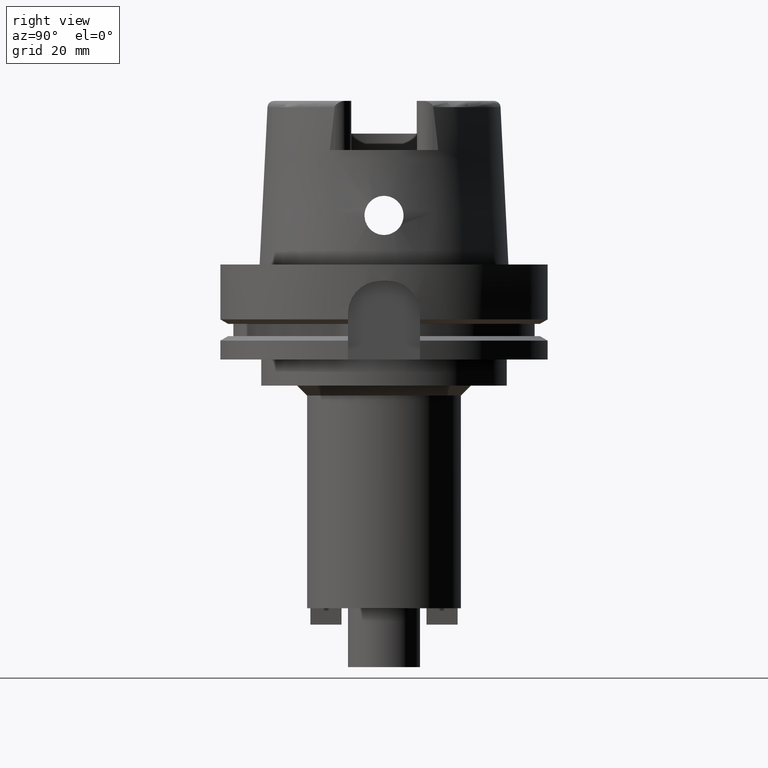
[diagram: clean part render]
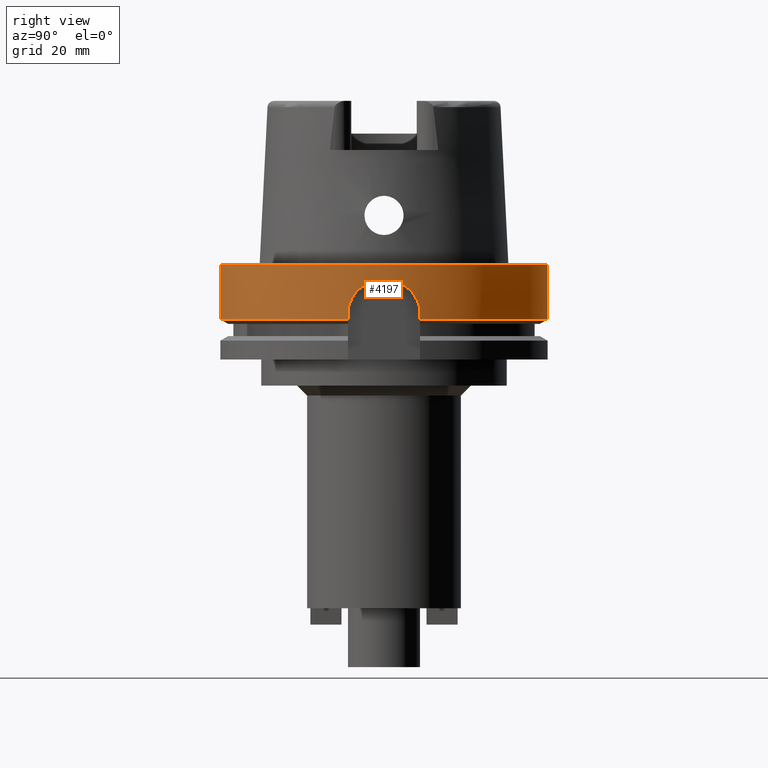
[diagram: same view with one face highlighted and labeled with its STEP entity id]
A machine part, right view. The second image highlights one B-rep face of the part: STEP entity #4197.
In plain terms, the highlighted cylindrical surface (partial cylindrical patch) has radius 50 mm, axis along (0, 0, 1).
Its self-contained STEP definition (entity closure, byte-faithful):
#1601=DIRECTION('',(0.E0,2.969006079282E-14,-1.E0));
#1602=VECTOR('',#1601,1.675240473581E1);
#1603=CARTESIAN_POINT('',(0.E0,-5.E1,-2.084258691563E-13));
#1604=LINE('',#1603,#1602);
#1654=CARTESIAN_POINT('',(4.877499359303E1,1.1E1,-1.675240473581E1));
#1659=CARTESIAN_POINT('',(0.E0,0.E0,-1.675240473581E1));
#1660=DIRECTION('',(0.E0,0.E0,1.E0));
#1661=DIRECTION('',(9.754998718606E-1,2.2E-1,0.E0));
#1662=AXIS2_PLACEMENT_3D('',#1659,#1660,#1661);
#1803=CARTESIAN_POINT('',(4.998999899980E1,-1.E0,-5.E0));
#1804=CARTESIAN_POINT('',(4.997504301820E1,-1.747649504988E0,-5.E0));
#1805=CARTESIAN_POINT('',(4.991291509295E1,-3.209087256410E0,
-5.162327818366E0));
#1806=CARTESIAN_POINT('',(4.972649899334E1,-5.357682436893E0,
-5.904331775824E0));
#1807=CARTESIAN_POINT('',(4.947875385072E1,-7.274178437564E0,
-7.105066867585E0));
#1808=CARTESIAN_POINT('',(4.921266909850E1,-8.876813600699E0,
-8.703268635923E0));
#1809=CARTESIAN_POINT('',(4.897589085151E1,-1.008412619630E1,
-1.061693787721E1));
#1810=CARTESIAN_POINT('',(4.881255513283E1,-1.083556002178E1,
-1.277678054108E1));
#1811=CARTESIAN_POINT('',(4.877499359303E1,-1.1E1,-1.424649556494E1));
#1812=CARTESIAN_POINT('',(4.877499359303E1,-1.1E1,-1.5E1));
#1817=DIRECTION('',(-5.027793947017E-13,6.690209687563E-14,-1.E0));
#1818=VECTOR('',#1817,1.752404735809E0);
#1819=CARTESIAN_POINT('',(4.877499359303E1,-1.1E1,-1.5E1));
#1820=LINE('',#1819,#1818);
#1824=DIRECTION('',(0.E0,-2.969006079282E-14,-1.E0));
#1825=VECTOR('',#1824,1.675240473581E1);
#1826=CARTESIAN_POINT('',(0.E0,5.E1,-2.084258691563E-13));
#1827=LINE('',#1826,#1825);
#1831=DIRECTION('',(4.946700496259E-13,7.095676941355E-14,1.E0));
#1832=VECTOR('',#1831,1.752404735809E0);
#1833=CARTESIAN_POINT('',(4.877499359303E1,1.1E1,-1.675240473581E1));
#1834=LINE('',#1833,#1832);
#1838=CARTESIAN_POINT('',(4.877499359303E1,1.1E1,-1.5E1));
#1839=CARTESIAN_POINT('',(4.877499359303E1,1.1E1,-1.425448395654E1));
#1840=CARTESIAN_POINT('',(4.881177750163E1,1.083892599063E1,-1.279803583097E1));
#1841=CARTESIAN_POINT('',(4.897257891128E1,1.009974257481E1,-1.065171430714E1));
#1842=CARTESIAN_POINT('',(4.920736576664E1,8.905515329642E0,-8.739945530532E0));
#1843=CARTESIAN_POINT('',(4.947305104361E1,7.312330785846E0,-7.135441452960E0));
#1844=CARTESIAN_POINT('',(4.972231634994E1,5.397059518138E0,-5.922392987251E0));
#1845=CARTESIAN_POINT('',(4.991145818504E1,3.235942603117E0,-5.166828100384E0));
#1846=CARTESIAN_POINT('',(4.997483573129E1,1.758011777477E0,-5.E0));
#1847=CARTESIAN_POINT('',(4.998999899980E1,1.E0,-5.E0));
#1852=CARTESIAN_POINT('',(0.E0,0.E0,-5.E0));
#1853=DIRECTION('',(0.E0,0.E0,1.E0));
#1854=DIRECTION('',(9.997999799960E-1,-2.E-2,0.E0));
#1855=AXIS2_PLACEMENT_3D('',#1852,#1853,#1854);
#1906=CARTESIAN_POINT('',(0.E0,0.E0,-1.675240473581E1));
#1907=DIRECTION('',(0.E0,0.E0,1.E0));
#1908=DIRECTION('',(0.E0,-1.E0,0.E0));
#1909=AXIS2_PLACEMENT_3D('',#1906,#1907,#1908);
#2060=CARTESIAN_POINT('',(0.E0,0.E0,-3.410605131648E-13));
#2061=DIRECTION('',(0.E0,0.E0,-1.E0));
#2062=DIRECTION('',(0.E0,1.E0,0.E0));
#2063=AXIS2_PLACEMENT_3D('',#2060,#2061,#2062);
#2777=CARTESIAN_POINT('',(0.E0,-5.E1,-1.675240473581E1));
#2778=VERTEX_POINT('',#2777);
#2779=CARTESIAN_POINT('',(4.877499359303E1,-1.1E1,-1.675240473581E1));
#2780=VERTEX_POINT('',#2779);
#2781=VERTEX_POINT('',#1654);
#2782=CARTESIAN_POINT('',(0.E0,5.E1,-1.675240473581E1));
#2783=VERTEX_POINT('',#2782);
#2785=CARTESIAN_POINT('',(0.E0,5.E1,-2.084258691563E-13));
#2786=VERTEX_POINT('',#2785);
#2787=CARTESIAN_POINT('',(0.E0,-5.E1,-3.410605131648E-13));
#2788=VERTEX_POINT('',#2787);
#2791=CARTESIAN_POINT('',(4.998999899980E1,-1.E0,-5.E0));
#2792=CARTESIAN_POINT('',(4.998999899980E1,1.E0,-5.E0));
#2793=VERTEX_POINT('',#2791);
#2794=VERTEX_POINT('',#2792);
#2795=VERTEX_POINT('',#1812);
#2796=CARTESIAN_POINT('',(4.877499359303E1,1.1E1,-1.5E1));
#2797=VERTEX_POINT('',#2796);
#4175=CARTESIAN_POINT('',(0.E0,0.E0,-1.3165E2));
#4176=DIRECTION('',(0.E0,0.E0,1.E0));
#4177=DIRECTION('',(0.E0,1.E0,0.E0));
#4178=AXIS2_PLACEMENT_3D('',#4175,#4176,#4177);
#4179=CYLINDRICAL_SURFACE('',#4178,5.E1);
#4181=ORIENTED_EDGE('',*,*,#4180,.F.);
#4183=ORIENTED_EDGE('',*,*,#4182,.T.);
#4184=ORIENTED_EDGE('',*,*,#3925,.T.);
#4186=ORIENTED_EDGE('',*,*,#4185,.F.);
#4187=ORIENTED_EDGE('',*,*,#4081,.F.);
#4189=ORIENTED_EDGE('',*,*,#4188,.F.);
#4190=ORIENTED_EDGE('',*,*,#4077,.T.);
#4191=ORIENTED_EDGE('',*,*,#4107,.F.);
#4192=ORIENTED_EDGE('',*,*,#3873,.T.);
#4194=ORIENTED_EDGE('',*,*,#4193,.T.);
#4195=EDGE_LOOP('',(#4181,#4183,#4184,#4186,#4187,#4189,#4190,#4191,#4192,
#4194));
#4196=FACE_OUTER_BOUND('',#4195,.F.);
#1663=CIRCLE('',#1662,5.E1);
#1813=B_SPLINE_CURVE_WITH_KNOTS('',3,(#1803,#1804,#1805,#1806,#1807,#1808,#1809,
#1810,#1811,#1812),.UNSPECIFIED.,.F.,.F.,(4,1,1,1,1,1,1,4),(0.E0,
1.428571428571E-1,2.857142857143E-1,4.285714285714E-1,5.714285714286E-1,
7.142857142857E-1,8.571428571429E-1,1.E0),.UNSPECIFIED.);
#1848=B_SPLINE_CURVE_WITH_KNOTS('',3,(#1838,#1839,#1840,#1841,#1842,#1843,#1844,
#1845,#1846,#1847),.UNSPECIFIED.,.F.,.F.,(4,1,1,1,1,1,1,4),(0.E0,
1.428571428571E-1,2.857142857143E-1,4.285714285714E-1,5.714285714286E-1,
7.142857142857E-1,8.571428571429E-1,1.E0),.UNSPECIFIED.);
#1856=CIRCLE('',#1855,5.E1);
#1910=CIRCLE('',#1909,5.E1);
#2064=CIRCLE('',#2063,5.E1);
#3873=EDGE_CURVE('',#2781,#2797,#1834,.T.);
#3925=EDGE_CURVE('',#2795,#2780,#1820,.T.);
#4077=EDGE_CURVE('',#2786,#2783,#1827,.T.);
#4081=EDGE_CURVE('',#2788,#2778,#1604,.T.);
#4107=EDGE_CURVE('',#2781,#2783,#1663,.T.);
#4180=EDGE_CURVE('',#2793,#2794,#1856,.T.);
#4182=EDGE_CURVE('',#2793,#2795,#1813,.T.);
#4185=EDGE_CURVE('',#2778,#2780,#1910,.T.);
#4188=EDGE_CURVE('',#2786,#2788,#2064,.T.);
#4193=EDGE_CURVE('',#2797,#2794,#1848,.T.);
#4197=ADVANCED_FACE('',(#4196),#4179,.T.);